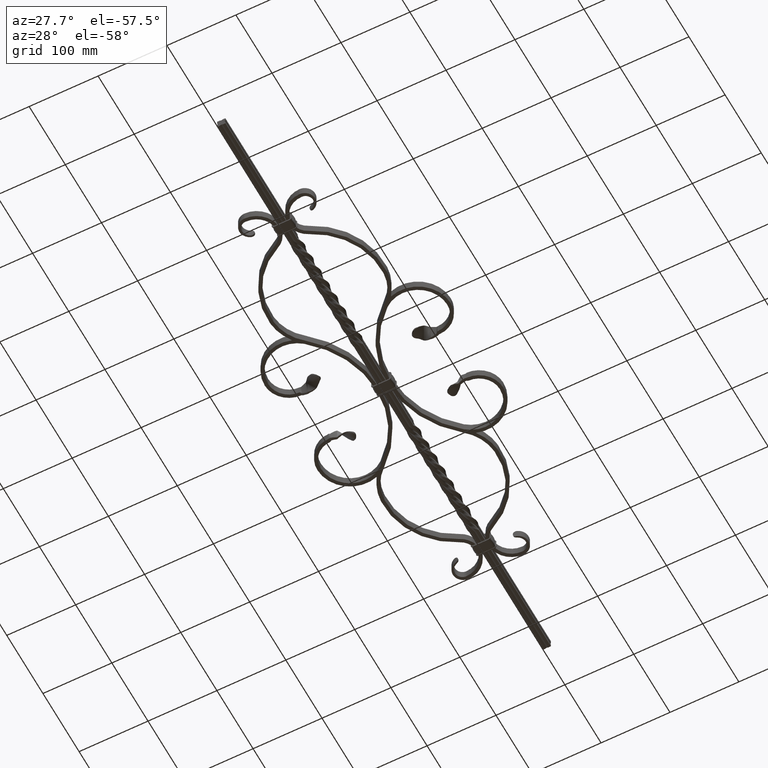
[diagram: clean part render]
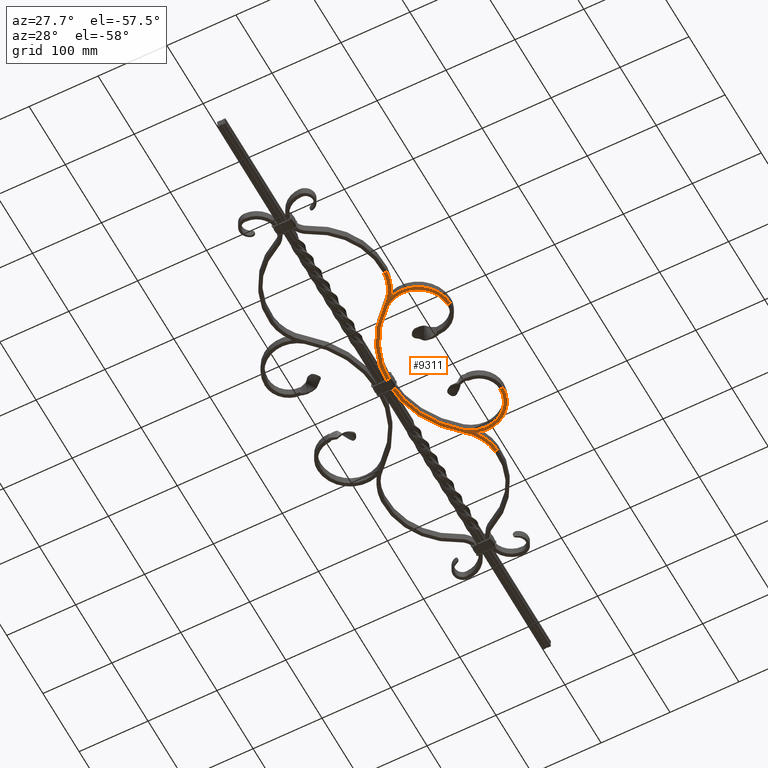
[diagram: same view with one face highlighted and labeled with its STEP entity id]
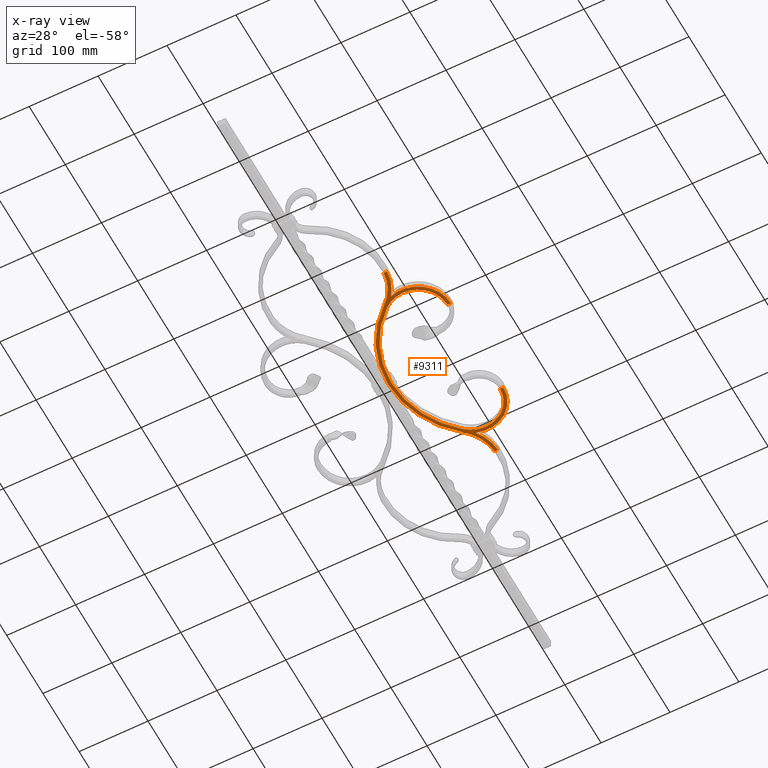
[diagram: x-ray of the same camera — body ghosted, the highlighted face saturated]
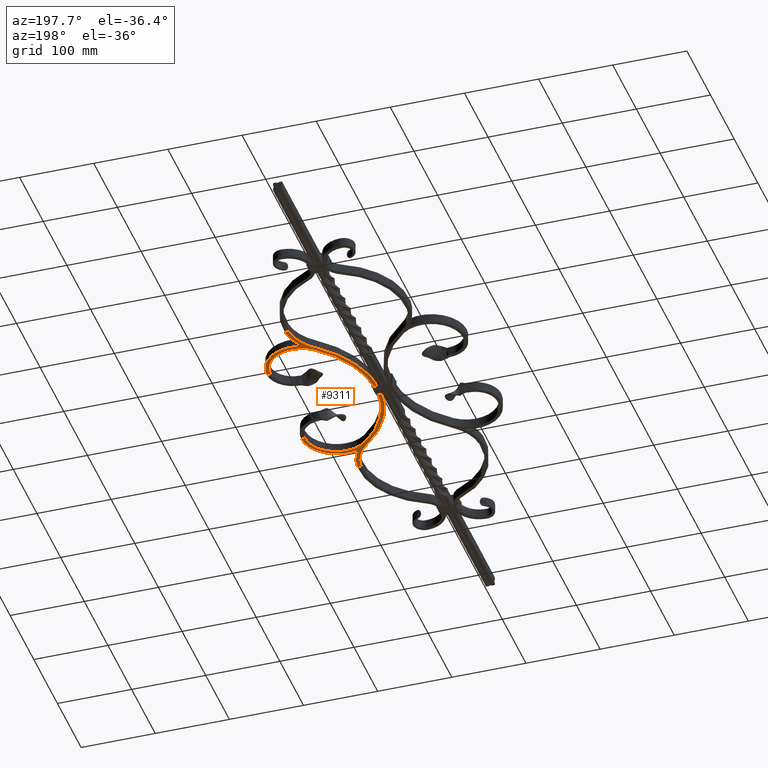
[diagram: same view with one face highlighted and labeled with its STEP entity id]
A machine part, auxiliary view. The second image highlights one B-rep face of the part: STEP entity #9311.
The next image is the same camera in x-ray: the body ghosted, the highlighted face saturated — about 0% of this face is hidden behind the body in this view.
A second angle (auxiliary view) of the same face is appended — the face is thin or edge-on in the first view.
In plain terms, the highlighted planar face has unit normal (0, 0, -1).
Its self-contained STEP definition (entity closure, byte-faithful):
#598 = ORIENTED_EDGE ( 'NONE', *, *, #27716, .F. ) ;
#963 = AXIS2_PLACEMENT_3D ( 'NONE', #20481, #23598, #27406 ) ;
#1150 = FACE_OUTER_BOUND ( 'NONE', #16435, .T. ) ;
#1214 = DIRECTION ( 'NONE',  ( -0.000000000000000000, -0.000000000000000000, -1.000000000000000000 ) ) ;
#1716 = AXIS2_PLACEMENT_3D ( 'NONE', #24554, #17851, #18274 ) ;
#1743 = DIRECTION ( 'NONE',  ( -0.000000000000000000, 0.000000000000000000, 1.000000000000000000 ) ) ;
#3103 = AXIS2_PLACEMENT_3D ( 'NONE', #19570, #10296, #26379 ) ;
#3934 = EDGE_CURVE ( 'NONE', #21551, #5934, #19543, .T. ) ;
#3976 = VECTOR ( 'NONE', #10295, 1000.000000000000227 ) ;
#4202 = CIRCLE ( 'NONE', #19386, 141.7978030625138501 ) ;
#4617 = VERTEX_POINT ( 'NONE', #41720 ) ;
#4879 = ORIENTED_EDGE ( 'NONE', *, *, #13908, .F. ) ;
#5409 = AXIS2_PLACEMENT_3D ( 'NONE', #22843, #6469, #29221 ) ;
#5934 = VERTEX_POINT ( 'NONE', #17602 ) ;
#5970 = EDGE_CURVE ( 'NONE', #31958, #38627, #17414, .T. ) ;
#6019 = ORIENTED_EDGE ( 'NONE', *, *, #5970, .T. ) ;
#6111 = EDGE_CURVE ( 'NONE', #15811, #4617, #9789, .T. ) ;
#6469 = DIRECTION ( 'NONE',  ( -0.000000000000000000, -0.000000000000000000, -1.000000000000000000 ) ) ;
#7245 = ORIENTED_EDGE ( 'NONE', *, *, #18718, .T. ) ;
#7399 = DIRECTION ( 'NONE',  ( -0.000000000000000000, -0.000000000000000000, -1.000000000000000000 ) ) ;
#7735 = DIRECTION ( 'NONE',  ( -0.6394402218073275135, -0.7688408175526294519, 0.000000000000000000 ) ) ;
#7747 = DIRECTION ( 'NONE',  ( 0.6394402218073302890, -0.7688408175526272315, 0.000000000000000000 ) ) ;
#8097 = DIRECTION ( 'NONE',  ( -0.6394402218073275135, -0.7688408175526294519, 0.000000000000000000 ) ) ;
#9311 = ADVANCED_FACE ( 'NONE', ( #1150 ), #34461, .T. ) ;
#9596 = AXIS2_PLACEMENT_3D ( 'NONE', #27502, #1743, #17986 ) ;
#9789 = CIRCLE ( 'NONE', #9596, 63.21634852184706688 ) ;
#10295 = DIRECTION ( 'NONE',  ( 0.9978213629846619526, 0.06597368847829708505, 1.734723475976805615E-16 ) ) ;
#10296 = DIRECTION ( 'NONE',  ( -0.000000000000000000, 0.000000000000000000, 1.000000000000000000 ) ) ;
#10670 = VERTEX_POINT ( 'NONE', #22908 ) ;
#10683 = CIRCLE ( 'NONE', #963, 68.21634852184701003 ) ;
#11317 = DIRECTION ( 'NONE',  ( -1.000000000000000000, 0.000000000000000000, 0.000000000000000000 ) ) ;
#11478 = LINE ( 'NONE', #14715, #15054 ) ;
#12170 = CARTESIAN_POINT ( 'NONE',  ( 71.73069833555310026, 117.3060166162499911, -5.999999999999999112 ) ) ;
#12552 = ORIENTED_EDGE ( 'NONE', *, *, #38115, .F. ) ;
#12667 = LINE ( 'NONE', #19264, #3976 ) ;
#13232 = CIRCLE ( 'NONE', #3103, 68.21634852184703846 ) ;
#13264 = CIRCLE ( 'NONE', #15447, 63.21634852184700293 ) ;
#13583 = EDGE_CURVE ( 'NONE', #10670, #31958, #13264, .T. ) ;
#13643 = ORIENTED_EDGE ( 'NONE', *, *, #17309, .F. ) ;
#13908 = EDGE_CURVE ( 'NONE', #19845, #20625, #10683, .T. ) ;
#14134 = DIRECTION ( 'NONE',  ( -0.000000000000000000, -0.000000000000000000, -1.000000000000000000 ) ) ;
#14371 = CARTESIAN_POINT ( 'NONE',  ( 79.78213658847553802, 153.4526322298628429, -6.000000000000000000 ) ) ;
#14715 = CARTESIAN_POINT ( 'NONE',  ( 130.0000000000000568, 72.50000000000001421, -6.000000000000000000 ) ) ;
#15054 = VECTOR ( 'NONE', #11317, 1000.000000000000000 ) ;
#15447 = AXIS2_PLACEMENT_3D ( 'NONE', #20712, #27234, #7747 ) ;
#15811 = VERTEX_POINT ( 'NONE', #41254 ) ;
#16435 = EDGE_LOOP ( 'NONE', ( #41563, #24258, #6019, #37427, #28739, #7245, #12552, #13643, #35989, #38264, #21339, #4879, #598, #32434 ) ) ;
#16906 = CARTESIAN_POINT ( 'NONE',  ( 71.73069833555307184, -117.3060166162499769, -6.000000000000000000 ) ) ;
#17309 = EDGE_CURVE ( 'NONE', #38104, #20482, #39506, .T. ) ;
#17414 = LINE ( 'NONE', #33781, #19468 ) ;
#17602 = CARTESIAN_POINT ( 'NONE',  ( 135.0000000000000853, -72.50000000000002842, -6.000000000000000000 ) ) ;
#17682 = AXIS2_PLACEMENT_3D ( 'NONE', #30890, #14134, #34168 ) ;
#17851 = DIRECTION ( 'NONE',  ( 0.000000000000000000, 0.000000000000000000, -1.000000000000000000 ) ) ;
#17986 = DIRECTION ( 'NONE',  ( 0.9978213629846619526, 0.06597368847829729321, 0.000000000000000000 ) ) ;
#18274 = DIRECTION ( 'NONE',  ( 1.000000000000000000, 0.000000000000000000, 0.000000000000000000 ) ) ;
#18718 = EDGE_CURVE ( 'NONE', #36683, #28922, #11478, .T. ) ;
#19264 = CARTESIAN_POINT ( 'NONE',  ( 79.78213657171579598, -153.4526322309708917, -6.000000000000000000 ) ) ;
#19386 = AXIS2_PLACEMENT_3D ( 'NONE', #20303, #1214, #33897 ) ;
#19468 = VECTOR ( 'NONE', #36783, 1000.000000000000000 ) ;
#19543 = LINE ( 'NONE', #25669, #23604 ) ;
#19570 = CARTESIAN_POINT ( 'NONE',  ( 16.70351354349273976, 157.6232479139785880, -5.999999999999999112 ) ) ;
#19657 = CARTESIAN_POINT ( 'NONE',  ( 130.0000000000000853, 72.50000000000002842, -6.000000000000000000 ) ) ;
#19845 = VERTEX_POINT ( 'NONE', #33085 ) ;
#20303 = CARTESIAN_POINT ( 'NONE',  ( 147.7978081062374258, -2.898016718037498487E-14, -6.000000000000000000 ) ) ;
#20481 = CARTESIAN_POINT ( 'NONE',  ( 16.70351354349273976, -157.6232479139785880, -5.999999999999999112 ) ) ;
#20482 = VERTEX_POINT ( 'NONE', #22801 ) ;
#20529 = DIRECTION ( 'NONE',  ( -0.6394402218073275135, 0.7688408175526294519, 0.000000000000000000 ) ) ;
#20625 = VERTEX_POINT ( 'NONE', #16906 ) ;
#20637 = EDGE_CURVE ( 'NONE', #4617, #10670, #4202, .T. ) ;
#20712 = CARTESIAN_POINT ( 'NONE',  ( 16.70351354349273976, 157.6232479139785880, -6.000000000000000000 ) ) ;
#21339 = ORIENTED_EDGE ( 'NONE', *, *, #33149, .F. ) ;
#21551 = VERTEX_POINT ( 'NONE', #30821 ) ;
#22801 = CARTESIAN_POINT ( 'NONE',  ( 60.32379057318851068, 105.1757347459867731, -5.999999999999999112 ) ) ;
#22843 = CARTESIAN_POINT ( 'NONE',  ( 87.50000000000007105, 72.50000000000001421, -6.000000000000000000 ) ) ;
#22908 = CARTESIAN_POINT ( 'NONE',  ( 57.12658946415187700, 109.0199388337499187, -6.000000000000000000 ) ) ;
#23598 = DIRECTION ( 'NONE',  ( -0.000000000000000000, 0.000000000000000000, 1.000000000000000000 ) ) ;
#23604 = VECTOR ( 'NONE', #26221, 1000.000000000000000 ) ;
#24258 = ORIENTED_EDGE ( 'NONE', *, *, #13583, .T. ) ;
#24314 = AXIS2_PLACEMENT_3D ( 'NONE', #31247, #24326, #8097 ) ;
#24326 = DIRECTION ( 'NONE',  ( -0.000000000000000000, 0.000000000000000000, 1.000000000000000000 ) ) ;
#24554 = CARTESIAN_POINT ( 'NONE',  ( 79.78213658847560907, -153.4526322298627861, -6.000000000000000000 ) ) ;
#25184 = CIRCLE ( 'NONE', #35003, 47.50000000000000711 ) ;
#25194 = EDGE_CURVE ( 'NONE', #39959, #38627, #13232, .T. ) ;
#25669 = CARTESIAN_POINT ( 'NONE',  ( 130.0000000000000568, -72.50000000000001421, -6.000000000000000000 ) ) ;
#26221 = DIRECTION ( 'NONE',  ( 1.000000000000000000, -0.000000000000000000, -0.000000000000000000 ) ) ;
#26379 = DIRECTION ( 'NONE',  ( 0.6394402218073298449, -0.7688408175526275645, 0.000000000000000000 ) ) ;
#27234 = DIRECTION ( 'NONE',  ( -0.000000000000000000, 0.000000000000000000, 1.000000000000000000 ) ) ;
#27406 = DIRECTION ( 'NONE',  ( 0.9978213629846620636, 0.06597368847829707117, 0.000000000000000000 ) ) ;
#27502 = CARTESIAN_POINT ( 'NONE',  ( 16.70351354349273976, -157.6232479139785880, -6.000000000000000000 ) ) ;
#27716 = EDGE_CURVE ( 'NONE', #15811, #19845, #12667, .T. ) ;
#28739 = ORIENTED_EDGE ( 'NONE', *, *, #38581, .T. ) ;
#28922 = VERTEX_POINT ( 'NONE', #19657 ) ;
#29221 = DIRECTION ( 'NONE',  ( -0.6394402218073275135, 0.7688408175526294519, 0.000000000000000000 ) ) ;
#30623 = CARTESIAN_POINT ( 'NONE',  ( 87.50000000000007105, -72.50000000000001421, -6.000000000000000000 ) ) ;
#30821 = CARTESIAN_POINT ( 'NONE',  ( 130.0000000000000853, -72.50000000000002842, -6.000000000000000000 ) ) ;
#30890 = CARTESIAN_POINT ( 'NONE',  ( 147.7978081062374258, -2.898016718037498487E-14, -5.999999999999999112 ) ) ;
#31247 = CARTESIAN_POINT ( 'NONE',  ( 87.50000000000007105, -72.50000000000001421, -6.000000000000000000 ) ) ;
#31958 = VERTEX_POINT ( 'NONE', #14371 ) ;
#32326 = CARTESIAN_POINT ( 'NONE',  ( 60.32379057318865279, -105.1757347459867589, -6.000000000000000000 ) ) ;
#32364 = AXIS2_PLACEMENT_3D ( 'NONE', #36838, #7399, #20529 ) ;
#32434 = ORIENTED_EDGE ( 'NONE', *, *, #6111, .T. ) ;
#33085 = CARTESIAN_POINT ( 'NONE',  ( 84.77124338663912795, -153.1227637885793911, -5.999999999999999112 ) ) ;
#33149 = EDGE_CURVE ( 'NONE', #20625, #5934, #25184, .T. ) ;
#33247 = CIRCLE ( 'NONE', #5409, 42.50000000000000711 ) ;
#33781 = CARTESIAN_POINT ( 'NONE',  ( 79.78213658847560907, 153.4526322298628429, -6.000000000000000000 ) ) ;
#33897 = DIRECTION ( 'NONE',  ( -0.6394402218073277355, -0.7688408175526294519, 0.000000000000000000 ) ) ;
#34168 = DIRECTION ( 'NONE',  ( -0.6394402218073277355, -0.7688408175526294519, 0.000000000000000000 ) ) ;
#34461 = PLANE ( 'NONE',  #1716 ) ;
#35003 = AXIS2_PLACEMENT_3D ( 'NONE', #30623, #39979, #7735 ) ;
#35024 = CARTESIAN_POINT ( 'NONE',  ( 135.0000000000000853, 72.50000000000002842, -6.000000000000000000 ) ) ;
#35989 = ORIENTED_EDGE ( 'NONE', *, *, #41876, .T. ) ;
#36683 = VERTEX_POINT ( 'NONE', #35024 ) ;
#36783 = DIRECTION ( 'NONE',  ( 0.9978213629846620636, -0.06597368847829634952, 1.734723475976805615E-16 ) ) ;
#36838 = CARTESIAN_POINT ( 'NONE',  ( 87.50000000000007105, 72.50000000000001421, -6.000000000000000000 ) ) ;
#37175 = CIRCLE ( 'NONE', #24314, 42.50000000000000711 ) ;
#37427 = ORIENTED_EDGE ( 'NONE', *, *, #25194, .F. ) ;
#38104 = VERTEX_POINT ( 'NONE', #32326 ) ;
#38115 = EDGE_CURVE ( 'NONE', #20482, #28922, #33247, .T. ) ;
#38264 = ORIENTED_EDGE ( 'NONE', *, *, #3934, .T. ) ;
#38581 = EDGE_CURVE ( 'NONE', #39959, #36683, #41366, .T. ) ;
#38627 = VERTEX_POINT ( 'NONE', #39538 ) ;
#39506 = CIRCLE ( 'NONE', #17682, 136.7978030625138501 ) ;
#39538 = CARTESIAN_POINT ( 'NONE',  ( 84.77124340339889841, 153.1227637874713707, -5.999999999999999112 ) ) ;
#39959 = VERTEX_POINT ( 'NONE', #12170 ) ;
#39979 = DIRECTION ( 'NONE',  ( -0.000000000000000000, 0.000000000000000000, 1.000000000000000000 ) ) ;
#41254 = CARTESIAN_POINT ( 'NONE',  ( 79.78213657171579598, -153.4526322309708917, -6.000000000000000000 ) ) ;
#41366 = CIRCLE ( 'NONE', #32364, 47.50000000000000711 ) ;
#41563 = ORIENTED_EDGE ( 'NONE', *, *, #20637, .T. ) ;
#41720 = CARTESIAN_POINT ( 'NONE',  ( 57.12658946415199068, -109.0199388337497481, -6.000000000000000000 ) ) ;
#41876 = EDGE_CURVE ( 'NONE', #38104, #21551, #37175, .T. ) ;